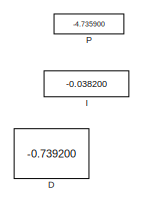
[diagram: root canvas - part 1/5, top left region]
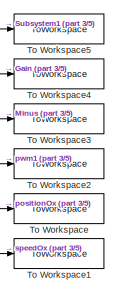
[diagram: root canvas - part 2/5, top right region]
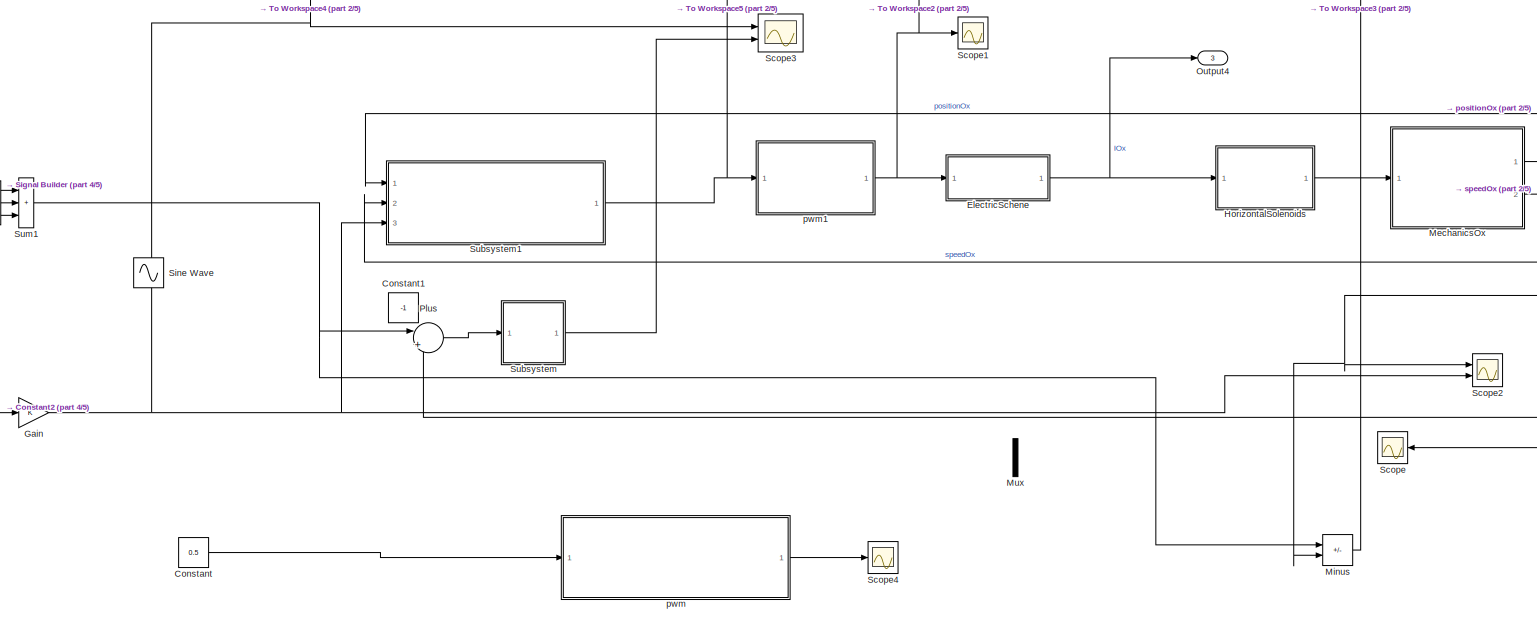
[diagram: root canvas - part 3/5, central region]
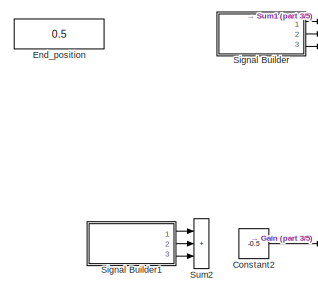
[diagram: root canvas - part 4/5, middle left region]
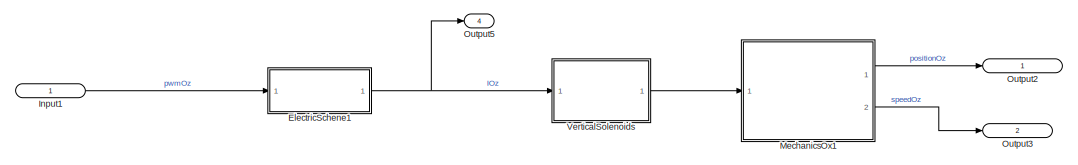
[diagram: root canvas - part 5/5, bottom right region]
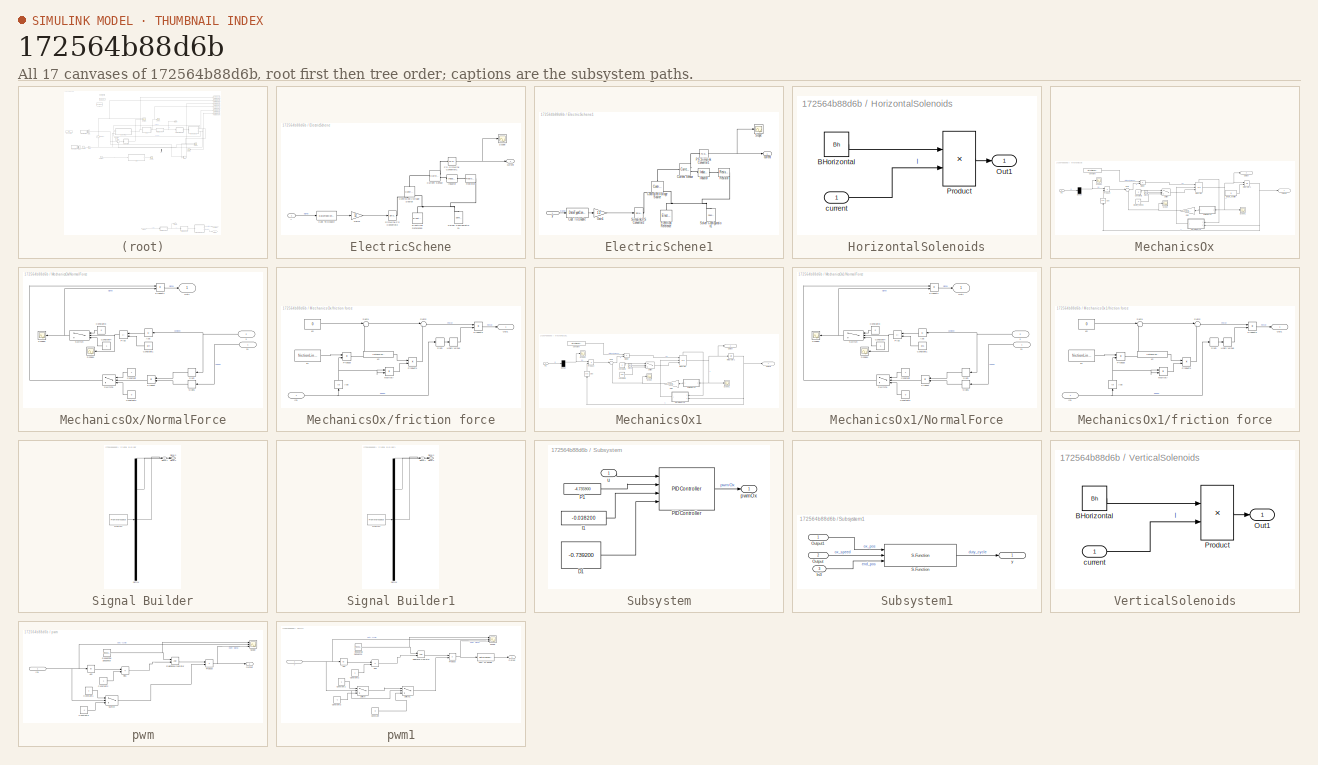
[diagram: thumbnail index - all 17 canvases of the model, root first then tree order]
MODEL slx_172564b88d6b
KIND model
CONFIG AbsTol = auto
CONFIG EnableMultiTasking = off
CONFIG FixedStep = 0.0005
CONFIG MaxStep = auto
CONFIG MinStep = auto
CONFIG RelTol = 1e-3
CONFIG SampleTimeConstraint = Unconstrained
CONFIG SolverName = ode4
CONFIG StartTime = 0.0
CONFIG StopTime = 20
BLOCK [Constant] Constant
  Commented = on
  Value = 0.5
BLOCK [Constant] Constant1
  Commented = on
  Value = -1
BLOCK [Constant] Constant2
  Value = -0.5
BLOCK [Constant] D
  Value = -0.739200
BLOCK [SubSystem] ElectricSchene
  Ports = [1, 1]
  RequestExecContextInheritance = off
BLOCK [DataTypeConversion] ElectricSchene/Cast To Double
  OutDataTypeStr = double
  RndMeth = Floor
  SaturateOnIntegerOverflow = off
BLOCK [Reference] ElectricSchene/Controlled Voltage Source  REF=fl_lib/Electrical/Electrical Sources/Controlled Voltage
Source
  NameLocation = right
  Ports = [0, 0, 0, 0, 0, 1, 2]
  SourceBlock = fl_lib/Electrical/Electrical Sources/Controlled Voltage\nSource
  SourceProductBaseCode = SS
  SourceType = Controlled Voltage\nSource
BLOCK [Reference] ElectricSchene/Current Sensor  REF=fl_lib/Electrical/Electrical Sensors/Current Sensor
  Ports = [0, 0, 0, 0, 0, 1, 2]
  SourceBlock = fl_lib/Electrical/Electrical Sensors/Current Sensor
  SourceProductBaseCode = SS
  SourceType = Current Sensor
BLOCK [Reference] ElectricSchene/Electrical Reference  REF=fl_lib/Electrical/Electrical Elements/Electrical Reference
  NameLocation = right
  Ports = [0, 0, 0, 0, 0, 1]
  SourceBlock = fl_lib/Electrical/Electrical Elements/Electrical Reference
  SourceProductBaseCode = SS
  SourceType = Electrical Reference
BLOCK [Gain] ElectricSchene/Gain1
  Gain = 12
BLOCK [Reference] ElectricSchene/Inductor  REF=fl_lib/Electrical/Electrical Elements/Inductor
  Ports = [0, 0, 0, 0, 0, 1, 1]
  SourceBlock = fl_lib/Electrical/Electrical Elements/Inductor
  SourceProductBaseCode = SS
  SourceType = Inductor
BLOCK [Reference] ElectricSchene/PS-Simulink Converter1  REF=nesl_utility/PS-Simulink
Converter
  Ports = [0, 1, 0, 0, 0, 1]
  SourceBlock = nesl_utility/PS-Simulink\nConverter
  SourceProductBaseCode = PW,SS
  SourceType = PS-Simulink\nConverter
BLOCK [Reference] ElectricSchene/Resistor  REF=fl_lib/Electrical/Electrical Elements/Resistor
  Ports = [0, 0, 0, 0, 0, 1, 1]
  SourceBlock = fl_lib/Electrical/Electrical Elements/Resistor
  SourceProductBaseCode = SS
  SourceType = Resistor
BLOCK [Scope] ElectricSchene/Scope
  Floating = off
  NumInputPorts = 1
  Ports = [1]
  ScopeSpecificationString = Simulink.scopes.TimeScopeBlockCfg('CurrentConfiguration', extmgr.ConfigurationSet(extmgr.Configuration('Core','General UI',true,'FigureColor',[0 0 0]),extmgr.Configuration('Core','Source UI',true),extmgr.Configuration('Sources','WiredSimulink',true,'DataLoggingVariableName','ScopeData2'),extmgr.Configuration('Visuals','Time Domain',true,'SerializedDisplays',{struct('MinYLimReal','-3.75','MaxYLimRe...<+1785ch>
BLOCK [Reference] ElectricSchene/Simulink-PS Converter2  REF=nesl_utility/Simulink-PS
Converter
  Ports = [1, 0, 0, 0, 0, 0, 1]
  SourceBlock = nesl_utility/Simulink-PS\nConverter
  SourceProductBaseCode = PW,SS
  SourceType = Simulink-PS\nConverter
BLOCK [Reference] ElectricSchene/Solver Configuration1  REF=nesl_utility/Solver
Configuration
  NameLocation = right
  Ports = [0, 0, 0, 0, 0, 0, 1]
  SourceBlock = nesl_utility/Solver\nConfiguration
  SourceProductBaseCode = PW,SS
  SourceType = Solver\nConfiguration
BLOCK [Outport] ElectricSchene/current
  VectorParamsAs1DForOutWhenUnconnected = off
BLOCK [Inport] ElectricSchene/y
  IconDisplay = Signal name
BLOCK [SubSystem] ElectricSchene1
  Commented = on
  Ports = [1, 1]
  RequestExecContextInheritance = off
BLOCK [DataTypeConversion] ElectricSchene1/Cast To Double
  OutDataTypeStr = double
  RndMeth = Floor
  SaturateOnIntegerOverflow = off
BLOCK [Reference] ElectricSchene1/Controlled Voltage Source  REF=fl_lib/Electrical/Electrical Sources/Controlled Voltage
Source
  NameLocation = right
  Ports = [0, 0, 0, 0, 0, 1, 2]
  SourceBlock = fl_lib/Electrical/Electrical Sources/Controlled Voltage\nSource
  SourceProductBaseCode = SS
  SourceType = Controlled Voltage\nSource
BLOCK [Reference] ElectricSchene1/Current Sensor  REF=fl_lib/Electrical/Electrical Sensors/Current Sensor
  Ports = [0, 0, 0, 0, 0, 1, 2]
  SourceBlock = fl_lib/Electrical/Electrical Sensors/Current Sensor
  SourceProductBaseCode = SS
  SourceType = Current Sensor
BLOCK [Reference] ElectricSchene1/Electrical Reference  REF=fl_lib/Electrical/Electrical Elements/Electrical Reference
  NameLocation = right
  Ports = [0, 0, 0, 0, 0, 1]
  SourceBlock = fl_lib/Electrical/Electrical Elements/Electrical Reference
  SourceProductBaseCode = SS
  SourceType = Electrical Reference
BLOCK [Gain] ElectricSchene1/Gain1
  Gain = 12
BLOCK [Reference] ElectricSchene1/Inductor  REF=fl_lib/Electrical/Electrical Elements/Inductor
  Ports = [0, 0, 0, 0, 0, 1, 1]
  SourceBlock = fl_lib/Electrical/Electrical Elements/Inductor
  SourceProductBaseCode = SS
  SourceType = Inductor
BLOCK [Reference] ElectricSchene1/PS-Simulink Converter1  REF=nesl_utility/PS-Simulink
Converter
  Ports = [0, 1, 0, 0, 0, 1]
  SourceBlock = nesl_utility/PS-Simulink\nConverter
  SourceProductBaseCode = PW,SS
  SourceType = PS-Simulink\nConverter
BLOCK [Reference] ElectricSchene1/Resistor  REF=fl_lib/Electrical/Electrical Elements/Resistor
  Ports = [0, 0, 0, 0, 0, 1, 1]
  SourceBlock = fl_lib/Electrical/Electrical Elements/Resistor
  SourceProductBaseCode = SS
  SourceType = Resistor
BLOCK [Scope] ElectricSchene1/Scope
  Floating = off
  NumInputPorts = 1
  Ports = [1]
  ScopeSpecificationString = Simulink.scopes.TimeScopeBlockCfg('CurrentConfiguration', extmgr.ConfigurationSet(extmgr.Configuration('Core','General UI',true,'FigureColor',[0 0 0]),extmgr.Configuration('Core','Source UI',true),extmgr.Configuration('Sources','WiredSimulink',true,'DataLoggingVariableName','ScopeData2'),extmgr.Configuration('Visuals','Time Domain',true,'SerializedDisplays',{struct('MinYLimReal','-3.7502','MaxYLim...<+1786ch>
BLOCK [Reference] ElectricSchene1/Simulink-PS Converter2  REF=nesl_utility/Simulink-PS
Converter
  Ports = [1, 0, 0, 0, 0, 0, 1]
  SourceBlock = nesl_utility/Simulink-PS\nConverter
  SourceProductBaseCode = PW,SS
  SourceType = Simulink-PS\nConverter
BLOCK [Reference] ElectricSchene1/Solver Configuration1  REF=nesl_utility/Solver
Configuration
  NameLocation = right
  Ports = [0, 0, 0, 0, 0, 0, 1]
  SourceBlock = nesl_utility/Solver\nConfiguration
  SourceProductBaseCode = PW,SS
  SourceType = Solver\nConfiguration
BLOCK [Outport] ElectricSchene1/current
  VectorParamsAs1DForOutWhenUnconnected = off
BLOCK [Inport] ElectricSchene1/y
  IconDisplay = Signal name
BLOCK [Constant] End_position
  Value = 0.5
BLOCK [Gain] Gain
BLOCK [SubSystem] HorizontalSolenoids
  Ports = [1, 1]
  RequestExecContextInheritance = off
BLOCK [Constant] HorizontalSolenoids/BHorizontal
  Value = Bh
BLOCK [Outport] HorizontalSolenoids/Out1
BLOCK [Product] HorizontalSolenoids/Product
  Ports = [2, 1]
BLOCK [Inport] HorizontalSolenoids/current
  IconDisplay = Signal name
BLOCK [Constant] I
  Value = -0.038200
BLOCK [Inport] Input1
  IconDisplay = Port number and signal name
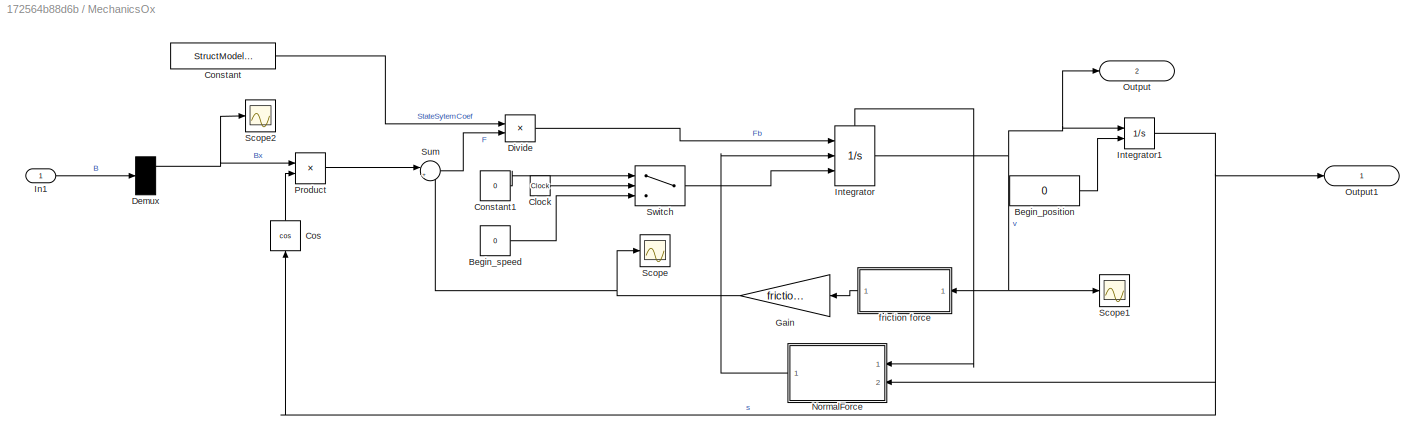
BLOCK [SubSystem] MechanicsOx
  Ports = [1, 2]
  RequestExecContextInheritance = off
BLOCK [Constant] MechanicsOx/Begin_position
  Value = 0
BLOCK [Constant] MechanicsOx/Begin_speed
  Value = 0
BLOCK [Clock] MechanicsOx/Clock
BLOCK [Constant] MechanicsOx/Constant
  Value = StructModelConst
BLOCK [Constant] MechanicsOx/Constant1
  Value = 0
BLOCK [Trigonometry] MechanicsOx/Cos
  NameLocation = right
  Operator = cos
  Ports = [1, 1]
BLOCK [Demux] MechanicsOx/Demux
  Outputs = 3
  Ports = [1, 3]
BLOCK [Product] MechanicsOx/Divide
  Inputs = **
  Ports = [2, 1]
BLOCK [Gain] MechanicsOx/Gain
  Gain = frictionCoef
  NameLocation = top
BLOCK [Inport] MechanicsOx/In1
  IconDisplay = Signal name
BLOCK [Integrator] MechanicsOx/Integrator
  ExternalReset = level
  InitialConditionSource = external
  Ports = [3, 1, 0, 0, 1]
  ShowStatePort = on
BLOCK [Integrator] MechanicsOx/Integrator1
  InitialCondition = degX0
  InitialConditionSource = external
  Ports = [2, 1]
BLOCK [SubSystem] MechanicsOx/NormalForce
  NameLocation = top
  Ports = [2, 1]
  RequestExecContextInheritance = off
BLOCK [Abs] MechanicsOx/NormalForce/Abs
  NameLocation = top
  SaturateOnIntegerOverflow = off
BLOCK [Constant] MechanicsOx/NormalForce/Constant
  NameLocation = top
BLOCK [Constant] MechanicsOx/NormalForce/Constant1
  NameLocation = top
  Value = pi/4
BLOCK [Constant] MechanicsOx/NormalForce/Constant2
  NameLocation = top
  Value = 0
BLOCK [Constant] MechanicsOx/NormalForce/Constant3
  NameLocation = top
  Value = 0
BLOCK [Constant] MechanicsOx/NormalForce/Constant4
  NameLocation = top
BLOCK [Outport] MechanicsOx/NormalForce/Out1
  IconDisplay = Signal name
BLOCK [Sum] MechanicsOx/NormalForce/Plus
  IconShape = rectangular
  Inputs = -+
  NameLocation = top
  Ports = [2, 1]
BLOCK [Product] MechanicsOx/NormalForce/Product
  NameLocation = top
  Ports = [2, 1]
BLOCK [Product] MechanicsOx/NormalForce/Product1
  Ports = [2, 1]
BLOCK [Scope] MechanicsOx/NormalForce/Scope3
  Floating = off
  NameLocation = top
  NumInputPorts = 1
  Ports = [1]
  ScopeSpecificationString = Simulink.scopes.TimeScopeBlockCfg('CurrentConfiguration', extmgr.ConfigurationSet(extmgr.Configuration('Core','General UI',true),extmgr.Configuration('Core','Source UI',true),extmgr.Configuration('Sources','WiredSimulink',true,'DataLoggingVariableName','ScopeData1'),extmgr.Configuration('Visuals','Time Domain',true,'SerializedDisplays',{struct('MinYLimReal','-1.00000','MaxYLimReal','1.00000','YLab...<+1726ch>
BLOCK [Scope] MechanicsOx/NormalForce/Scope4
  Floating = off
  NameLocation = top
  NumInputPorts = 1
  Ports = [1]
  ScopeSpecificationString = Simulink.scopes.TimeScopeBlockCfg('CurrentConfiguration', extmgr.ConfigurationSet(extmgr.Configuration('Core','General UI',true),extmgr.Configuration('Core','Source UI',true),extmgr.Configuration('Sources','WiredSimulink',true,'DataLoggingVariableName','ScopeData2'),extmgr.Configuration('Visuals','Time Domain',true,'SerializedDisplays',{struct('MinYLimReal','0.20867','MaxYLimReal','0.84948','YLabe...<+1726ch>
BLOCK [Signum] MechanicsOx/NormalForce/Sign
  NameLocation = top
BLOCK [Signum] MechanicsOx/NormalForce/Sign1
  NameLocation = top
BLOCK [Switch] MechanicsOx/NormalForce/Switch
  Criteria = u2 > Threshold
  InputSameDT = off
  NameLocation = top
  SaturateOnIntegerOverflow = off
  Threshold = 0.001
BLOCK [Switch] MechanicsOx/NormalForce/Switch1
  InputSameDT = off
  NameLocation = top
  SaturateOnIntegerOverflow = off
  Threshold = 1
BLOCK [Inport] MechanicsOx/NormalForce/s
  IconDisplay = Signal name
  Port = 2
BLOCK [Inport] MechanicsOx/NormalForce/s1
  IconDisplay = Signal name
BLOCK [Outport] MechanicsOx/Output
  IconDisplay = Signal name
  Port = 2
BLOCK [Outport] MechanicsOx/Output1
  IconDisplay = Signal name
BLOCK [Product] MechanicsOx/Product
  Ports = [2, 1]
BLOCK [Scope] MechanicsOx/Scope
  Floating = off
  NumInputPorts = 1
  Ports = [1]
  ScopeSpecificationString = Simulink.scopes.TimeScopeBlockCfg('CurrentConfiguration', extmgr.ConfigurationSet(extmgr.Configuration('Core','General UI',true),extmgr.Configuration('Core','Source UI',true),extmgr.Configuration('Sources','WiredSimulink',true,'DataLoggingVariableName','ScopeData4'),extmgr.Configuration('Visuals','Time Domain',true,'SerializedDisplays',{struct('MinYLimReal','-0.000037','MaxYLimReal','0.000036','YL...<+1400ch>
BLOCK [Scope] MechanicsOx/Scope1
  Commented = on
  Floating = off
  NumInputPorts = 1
  Ports = [1]
  ScopeSpecificationString = Simulink.scopes.TimeScopeBlockCfg('CurrentConfiguration', extmgr.ConfigurationSet(extmgr.Configuration('Core','General UI',true),extmgr.Configuration('Core','Source UI',true),extmgr.Configuration('Sources','WiredSimulink',true,'DataLoggingVariableName','ScopeData2'),extmgr.Configuration('Visuals','Time Domain',true,'SerializedDisplays',{struct('MinYLimReal','-0.54781','MaxYLimReal','1.80112','YLab...<+1388ch>
BLOCK [Scope] MechanicsOx/Scope2
  Floating = off
  NumInputPorts = 1
  Ports = [1]
  ScopeSpecificationString = Simulink.scopes.TimeScopeBlockCfg('CurrentConfiguration', extmgr.ConfigurationSet(extmgr.Configuration('Core','General UI',true),extmgr.Configuration('Core','Source UI',true),extmgr.Configuration('Sources','WiredSimulink',true,'DataLoggingVariableName','ScopeData5'),extmgr.Configuration('Visuals','Time Domain',true,'SerializedDisplays',{struct('MinYLimReal','-0.00237','MaxYLimReal','0.00237','YLab...<+1414ch>
BLOCK [Sum] MechanicsOx/Sum
  Inputs = |++
  Ports = [2, 1]
BLOCK [Switch] MechanicsOx/Switch
  Criteria = u2 > Threshold
  InputSameDT = off
  SaturateOnIntegerOverflow = off
BLOCK [SubSystem] MechanicsOx/friction force
  NameLocation = top
  Ports = [1, 1]
  RequestExecContextInheritance = off
BLOCK [Abs] MechanicsOx/friction force/Abs
  NameLocation = right
  SaturateOnIntegerOverflow = off
BLOCK [Inport] MechanicsOx/friction force/In1
  IconDisplay = Signal name
BLOCK [Product] MechanicsOx/friction force/Multiply
  Ports = [2, 1]
BLOCK [Outport] MechanicsOx/friction force/Out1
  IconDisplay = Signal name
BLOCK [Product] MechanicsOx/friction force/Product
  Ports = [2, 1]
BLOCK [Product] MechanicsOx/friction force/Product1
  Ports = [2, 1]
BLOCK [Product] MechanicsOx/friction force/Product2
  Ports = [2, 1]
BLOCK [Signum] MechanicsOx/friction force/Sign
BLOCK [Sum] MechanicsOx/friction force/Sum1
  Inputs = |++
  Ports = [2, 1]
BLOCK [Sum] MechanicsOx/friction force/Sum2
  Inputs = |++
  Ports = [2, 1]
BLOCK [UnaryMinus] MechanicsOx/friction force/Unary Minus
BLOCK [Constant] MechanicsOx/friction force/k0
  Value = 0
BLOCK [Constant] MechanicsOx/friction force/k1
  Value = frictionLinearCoef
BLOCK [Constant] MechanicsOx/friction force/k2
  Value = frictionQuadraticCoef
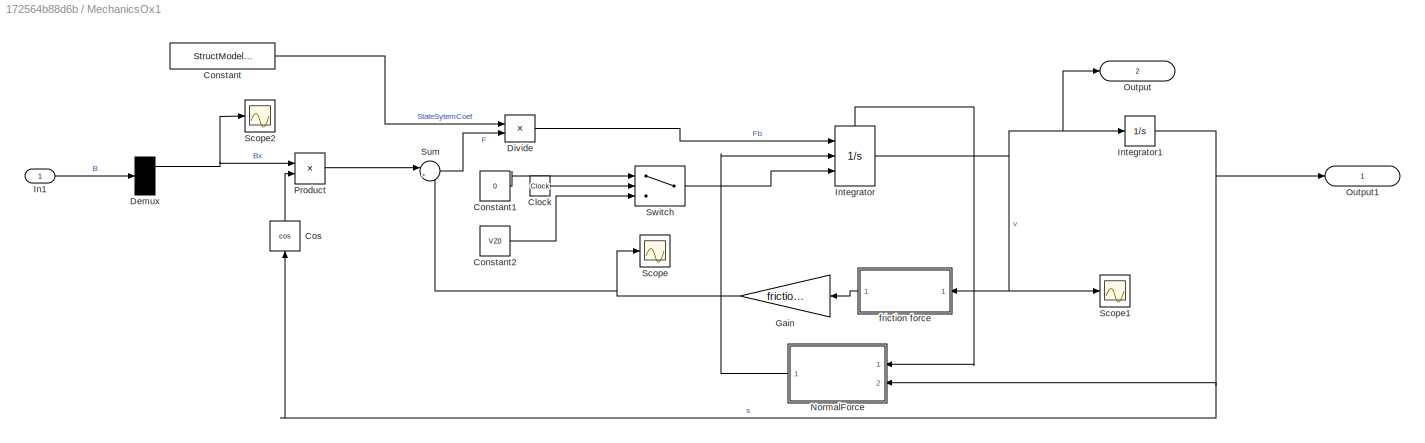
BLOCK [SubSystem] MechanicsOx1
  Commented = on
  Ports = [1, 2]
  RequestExecContextInheritance = off
BLOCK [Clock] MechanicsOx1/Clock
BLOCK [Constant] MechanicsOx1/Constant
  Value = StructModelConst
BLOCK [Constant] MechanicsOx1/Constant1
  Value = 0
BLOCK [Constant] MechanicsOx1/Constant2
  Value = VZ0
BLOCK [Trigonometry] MechanicsOx1/Cos
  NameLocation = right
  Operator = cos
  Ports = [1, 1]
BLOCK [Demux] MechanicsOx1/Demux
  Outputs = 3
  Ports = [1, 3]
BLOCK [Product] MechanicsOx1/Divide
  Inputs = **
  Ports = [2, 1]
BLOCK [Gain] MechanicsOx1/Gain
  Gain = frictionCoef
  NameLocation = top
BLOCK [Inport] MechanicsOx1/In1
  IconDisplay = Signal name
BLOCK [Integrator] MechanicsOx1/Integrator
  ExternalReset = level
  InitialConditionSource = external
  Ports = [3, 1, 0, 0, 1]
  ShowStatePort = on
BLOCK [Integrator] MechanicsOx1/Integrator1
  InitialCondition = degZ0
  Ports = [1, 1]
BLOCK [SubSystem] MechanicsOx1/NormalForce
  NameLocation = top
  Ports = [2, 1]
  RequestExecContextInheritance = off
BLOCK [Abs] MechanicsOx1/NormalForce/Abs
  NameLocation = top
  SaturateOnIntegerOverflow = off
BLOCK [Constant] MechanicsOx1/NormalForce/Constant
  NameLocation = top
BLOCK [Constant] MechanicsOx1/NormalForce/Constant1
  NameLocation = top
  Value = pi/6
BLOCK [Constant] MechanicsOx1/NormalForce/Constant2
  NameLocation = top
  Value = 0
BLOCK [Constant] MechanicsOx1/NormalForce/Constant3
  NameLocation = top
  Value = 0
BLOCK [Constant] MechanicsOx1/NormalForce/Constant4
  NameLocation = top
BLOCK [Outport] MechanicsOx1/NormalForce/Out1
  IconDisplay = Signal name
BLOCK [Sum] MechanicsOx1/NormalForce/Plus
  IconShape = rectangular
  Inputs = -+
  NameLocation = top
  Ports = [2, 1]
BLOCK [Product] MechanicsOx1/NormalForce/Product
  NameLocation = top
  Ports = [2, 1]
BLOCK [Product] MechanicsOx1/NormalForce/Product1
  Ports = [2, 1]
BLOCK [Scope] MechanicsOx1/NormalForce/Scope3
  Floating = off
  NameLocation = top
  NumInputPorts = 1
  Ports = [1]
  ScopeSpecificationString = Simulink.scopes.TimeScopeBlockCfg('CurrentConfiguration', extmgr.ConfigurationSet(extmgr.Configuration('Core','General UI',true),extmgr.Configuration('Core','Source UI',true),extmgr.Configuration('Sources','WiredSimulink',true,'DataLoggingVariableName','ScopeData1'),extmgr.Configuration('Visuals','Time Domain',true,'SerializedDisplays',{struct('MinYLimReal','-1.00000','MaxYLimReal','1.00000','YLab...<+1726ch>
BLOCK [Scope] MechanicsOx1/NormalForce/Scope4
  Floating = off
  NameLocation = top
  NumInputPorts = 1
  Ports = [1]
  ScopeSpecificationString = Simulink.scopes.TimeScopeBlockCfg('CurrentConfiguration', extmgr.ConfigurationSet(extmgr.Configuration('Core','General UI',true),extmgr.Configuration('Core','Source UI',true),extmgr.Configuration('Sources','WiredSimulink',true,'DataLoggingVariableName','ScopeData2'),extmgr.Configuration('Visuals','Time Domain',true,'SerializedDisplays',{struct('MinYLimReal','0.50026','MaxYLimReal','0.52619','YLabe...<+1754ch>
BLOCK [Signum] MechanicsOx1/NormalForce/Sign
  NameLocation = top
BLOCK [Signum] MechanicsOx1/NormalForce/Sign1
  NameLocation = top
BLOCK [Switch] MechanicsOx1/NormalForce/Switch
  Criteria = u2 > Threshold
  InputSameDT = off
  NameLocation = top
  SaturateOnIntegerOverflow = off
  Threshold = 0.001
BLOCK [Switch] MechanicsOx1/NormalForce/Switch1
  InputSameDT = off
  NameLocation = top
  SaturateOnIntegerOverflow = off
  Threshold = 1
BLOCK [Inport] MechanicsOx1/NormalForce/s
  IconDisplay = Signal name
  Port = 2
BLOCK [Inport] MechanicsOx1/NormalForce/s1
  IconDisplay = Signal name
BLOCK [Outport] MechanicsOx1/Output
  IconDisplay = Signal name
  Port = 2
BLOCK [Outport] MechanicsOx1/Output1
  IconDisplay = Signal name
BLOCK [Product] MechanicsOx1/Product
  Ports = [2, 1]
BLOCK [Scope] MechanicsOx1/Scope
  Floating = off
  NumInputPorts = 1
  Ports = [1]
  ScopeSpecificationString = Simulink.scopes.TimeScopeBlockCfg('CurrentConfiguration', extmgr.ConfigurationSet(extmgr.Configuration('Core','General UI',true),extmgr.Configuration('Core','Source UI',true),extmgr.Configuration('Sources','WiredSimulink',true,'DataLoggingVariableName','ScopeData4'),extmgr.Configuration('Visuals','Time Domain',true,'SerializedDisplays',{struct('MinYLimReal','-0.00000001','MaxYLimReal','0.00000009'...<+1416ch>
BLOCK [Scope] MechanicsOx1/Scope1
  Floating = off
  NumInputPorts = 1
  Ports = [1]
  ScopeSpecificationString = Simulink.scopes.TimeScopeBlockCfg('CurrentConfiguration', extmgr.ConfigurationSet(extmgr.Configuration('Core','General UI',true),extmgr.Configuration('Core','Source UI',true),extmgr.Configuration('Sources','WiredSimulink',true,'DataLoggingVariableName','ScopeData2'),extmgr.Configuration('Visuals','Time Domain',true,'SerializedDisplays',{struct('MinYLimReal','-0.90976','MaxYLimReal','8.18781','YLab...<+1388ch>
BLOCK [Scope] MechanicsOx1/Scope2
  Floating = off
  NumInputPorts = 1
  Ports = [1]
  ScopeSpecificationString = Simulink.scopes.TimeScopeBlockCfg('CurrentConfiguration', extmgr.ConfigurationSet(extmgr.Configuration('Core','General UI',true),extmgr.Configuration('Core','Source UI',true),extmgr.Configuration('Sources','WiredSimulink',true,'DataLoggingVariableName','ScopeData5'),extmgr.Configuration('Visuals','Time Domain',true,'SerializedDisplays',{struct('MinYLimReal','-0.00234','MaxYLimReal','0.00233','YLab...<+1390ch>
BLOCK [Sum] MechanicsOx1/Sum
  Inputs = |++
  Ports = [2, 1]
BLOCK [Switch] MechanicsOx1/Switch
  Criteria = u2 > Threshold
  InputSameDT = off
  SaturateOnIntegerOverflow = off
BLOCK [SubSystem] MechanicsOx1/friction force
  NameLocation = top
  Ports = [1, 1]
  RequestExecContextInheritance = off
BLOCK [Abs] MechanicsOx1/friction force/Abs
  NameLocation = right
  SaturateOnIntegerOverflow = off
BLOCK [Inport] MechanicsOx1/friction force/In1
  IconDisplay = Signal name
BLOCK [Product] MechanicsOx1/friction force/Multiply
  Ports = [2, 1]
BLOCK [Outport] MechanicsOx1/friction force/Out1
  IconDisplay = Signal name
BLOCK [Product] MechanicsOx1/friction force/Product
  Ports = [2, 1]
BLOCK [Product] MechanicsOx1/friction force/Product1
  Ports = [2, 1]
BLOCK [Product] MechanicsOx1/friction force/Product2
  Ports = [2, 1]
BLOCK [Signum] MechanicsOx1/friction force/Sign
BLOCK [Sum] MechanicsOx1/friction force/Sum1
  Inputs = |++
  Ports = [2, 1]
BLOCK [Sum] MechanicsOx1/friction force/Sum2
  Inputs = |++
  Ports = [2, 1]
BLOCK [UnaryMinus] MechanicsOx1/friction force/Unary Minus
BLOCK [Constant] MechanicsOx1/friction force/k0
  Value = 0
BLOCK [Constant] MechanicsOx1/friction force/k1
  Value = frictionLinearCoef
BLOCK [Constant] MechanicsOx1/friction force/k2
  Value = frictionQuadraticCoef
BLOCK [Sum] Minus
  IconShape = rectangular
  Inputs = +-
  Ports = [2, 1]
BLOCK [Mux] Mux
  DisplayOption = bar
  Inputs = 2
  Ports = [2, 1]
BLOCK [Outport] Output2
  IconDisplay = Port number and signal name
  SignalName = positionOz
BLOCK [Outport] Output3
  IconDisplay = Port number and signal name
  Port = 2
  SignalName = speedOz
BLOCK [Outport] Output4
  IconDisplay = Port number and signal name
  Port = 3
  SignalName = IOx
BLOCK [Outport] Output5
  IconDisplay = Port number and signal name
  Port = 4
  SignalName = IOz
BLOCK [Constant] P
  Value = -4.735900
BLOCK [Sum] Plus
  Commented = on
  Inputs = |+-
  Ports = [2, 1]
BLOCK [Scope] Scope
  Floating = off
  NameLocation = top
  NumInputPorts = 1
  Ports = [1]
  ScopeSpecificationString = Simulink.scopes.TimeScopeBlockCfg('CurrentConfiguration', extmgr.ConfigurationSet(extmgr.Configuration('Core','General UI',true),extmgr.Configuration('Core','Source UI',true),extmgr.Configuration('Sources','WiredSimulink',true,'DataLoggingVariableName','ScopeData1'),extmgr.Configuration('Visuals','Time Domain',true,'SerializedDisplays',{struct('MinYLimReal','-3.16153','MaxYLimReal','4.97356','YLab...<+1396ch>
BLOCK [Scope] Scope1
  Floating = off
  NumInputPorts = 1
  Ports = [1]
  ScopeSpecificationString = Simulink.scopes.TimeScopeBlockCfg('CurrentConfiguration', extmgr.ConfigurationSet(extmgr.Configuration('Core','General UI',true),extmgr.Configuration('Core','Source UI',true),extmgr.Configuration('Sources','WiredSimulink',true,'DataLoggingVariableName','ScopeData1'),extmgr.Configuration('Visuals','Time Domain',true,'SerializedDisplays',{struct('MinYLimReal','-1.25','MaxYLimReal','1.25','YLabelReal...<+1480ch>
BLOCK [Scope] Scope2
  Floating = off
  NumInputPorts = 2
  Ports = [2]
  ScopeSpecificationString = Simulink.scopes.TimeScopeBlockCfg('CurrentConfiguration', extmgr.ConfigurationSet(extmgr.Configuration('Core','General UI',true),extmgr.Configuration('Core','Source UI',true),extmgr.Configuration('Sources','WiredSimulink',true,'DataLoggingVariableName','ScopeData2'),extmgr.Configuration('Visuals','Time Domain',true,'SerializedDisplays',{struct('MinYLimReal','-0.98055','MaxYLimReal','0.98054','YLab...<+1806ch>
BLOCK [Scope] Scope3
  Floating = off
  NumInputPorts = 2
  Ports = [2]
  ScopeSpecificationString = Simulink.scopes.TimeScopeBlockCfg('CurrentConfiguration', extmgr.ConfigurationSet(extmgr.Configuration('Core','General UI',true),extmgr.Configuration('Core','Source UI',true),extmgr.Configuration('Sources','WiredSimulink',true,'DataLoggingVariableName','ScopeData3'),extmgr.Configuration('Visuals','Time Domain',true,'SerializedDisplays',{struct('MinYLimReal','-1.25','MaxYLimReal','1.25','YLabelReal...<+1525ch>
BLOCK [Scope] Scope4
  Commented = on
  Floating = off
  NumInputPorts = 1
  Ports = [1]
  ScopeSpecificationString = Simulink.scopes.TimeScopeBlockCfg('CurrentConfiguration', extmgr.ConfigurationSet(extmgr.Configuration('Core','General UI',true),extmgr.Configuration('Core','Source UI',true),extmgr.Configuration('Sources','WiredSimulink',true,'DataLoggingVariableName','ScopeData1'),extmgr.Configuration('Visuals','Time Domain',true,'SerializedDisplays',{struct('MinYLimReal','-0.125','MaxYLimReal','1.125','YLabelRe...<+1378ch>
BLOCK [SubSystem] Signal Builder
  ClipboardFcn = sigbuilder_block('clipboard');
  CloseFcn = sigbuilder_block('close');
  Commented = on
  ContinueFcn = sigbuilder_block('continue');
  CopyFcn = sigbuilder_block('copy');
  DeleteFcn = sigbuilder_block('delete');
  LoadFcn = sigbuilder_block('load');
  MaskHideContents = on
  ModelCloseFcn = sigbuilder_block('modelClose');
  NameChangeFcn = sigbuilder_block('namechange');
  NameLocation = left
  OpenFcn = sigbuilder_block('open',[429.75 192 565.5 399.75 ]);
  PauseFcn = sigbuilder_block('pause');
  Ports = [0, 3]
  PreSaveFcn = sigbuilder_block('preSave');
  RequestExecContextInheritance = off
  StartFcn = sigbuilder_block('start');
  StopFcn = sigbuilder_block('stop');
  Tag = STV Subsys
BLOCK [Demux] Signal Builder/Demux
  DisplayOption = none
  Outputs = 3
  Ports = [1, 3]
  Tag = STV Demux
BLOCK [FromWorkspace] Signal Builder/FromWs
  Tag = STV FromWs
  VariableName = tuvar
BLOCK [Outport] Signal Builder/Signal 1
  Tag = STV Outport
BLOCK [Outport] Signal Builder/Signal 2
  Port = 2
  Tag = STV Outport
BLOCK [Outport] Signal Builder/Signal 3
  Port = 3
  Tag = STV Outport
BLOCK [SubSystem] Signal Builder1
  ClipboardFcn = sigbuilder_block('clipboard');
  CloseFcn = sigbuilder_block('close');
  ContinueFcn = sigbuilder_block('continue');
  CopyFcn = sigbuilder_block('copy');
  DeleteFcn = sigbuilder_block('delete');
  LoadFcn = sigbuilder_block('load');
  MaskHideContents = on
  ModelCloseFcn = sigbuilder_block('modelClose');
  NameChangeFcn = sigbuilder_block('namechange');
  NameLocation = left
  OpenFcn = sigbuilder_block('open',[50.25 0 1389.75 817.5 ]);
  PauseFcn = sigbuilder_block('pause');
  Ports = [0, 3]
  PreSaveFcn = sigbuilder_block('preSave');
  RequestExecContextInheritance = off
  StartFcn = sigbuilder_block('start');
  StopFcn = sigbuilder_block('stop');
  Tag = STV Subsys
BLOCK [Demux] Signal Builder1/Demux
  DisplayOption = none
  Outputs = 3
  Ports = [1, 3]
  Tag = STV Demux
BLOCK [FromWorkspace] Signal Builder1/FromWs
  Tag = STV FromWs
  VariableName = tuvar
BLOCK [Outport] Signal Builder1/Signal 1
  Tag = STV Outport
BLOCK [Outport] Signal Builder1/Signal 2
  Port = 2
  Tag = STV Outport
BLOCK [Outport] Signal Builder1/Signal 3
  Port = 3
  Tag = STV Outport
BLOCK [Sin] Sine Wave
  Frequency = 10
  Phase = pi/2
  Ports = [0, 1]
  SampleTime = 0
BLOCK [SubSystem] Subsystem
  Commented = on
  Ports = [1, 1]
  RequestExecContextInheritance = off
BLOCK [Constant] Subsystem/D1
  Value = -0.739200
BLOCK [Constant] Subsystem/I1
  Value = -0.038200
BLOCK [Constant] Subsystem/P1
  Value = -4.735900
BLOCK [Reference] Subsystem/PID Controller  REF=pid_lib/PID Controller
  Ports = [4, 1]
  SourceBlock = pid_lib/PID Controller
  SourceProductBaseCode = SL
  SourceType = PID 1dof
BLOCK [Outport] Subsystem/pwmOx
BLOCK [Inport] Subsystem/u
BLOCK [SubSystem] Subsystem1
  Ports = [3, 1]
  RequestExecContextInheritance = off
BLOCK [Inport] Subsystem1/In3
  IconDisplay = Signal name
  Port = 3
BLOCK [Inport] Subsystem1/Output
  IconDisplay = Signal name
  Port = 2
BLOCK [Inport] Subsystem1/Output1
  IconDisplay = Signal name
BLOCK [S-Function] Subsystem1/S-Function
  EnableBusSupport = off
  FunctionName = neurla_http_client_sfunc
  Parameters = 3
  Ports = [3, 1]
  SFcnIsStateOwnerBlock = off
  SFunctionDeploymentMode = off
BLOCK [Outport] Subsystem1/y
  IconDisplay = Signal name
BLOCK [Sum] Sum1
  Commented = on
  IconShape = rectangular
  Inputs = +++
  Ports = [3, 1]
BLOCK [Sum] Sum2
  IconShape = rectangular
  Inputs = +++
  Ports = [3, 1]
BLOCK [ToWorkspace] To Workspace
  FixptAsFi = on
  MaxDataPoints = inf
  Ports = [1]
  SampleTime = 1/100
  Save2DSignal = 2-D array (concatenate along first dimension)
  VariableName = OxPositions
BLOCK [ToWorkspace] To Workspace1
  FixptAsFi = on
  MaxDataPoints = inf
  Ports = [1]
  SampleTime = 1/100
  VariableName = OxSpeed
BLOCK [ToWorkspace] To Workspace2
  FixptAsFi = on
  MaxDataPoints = inf
  Ports = [1]
  SampleTime = 1/100
  Save2DSignal = 2-D array (concatenate along first dimension)
  VariableName = pwmControl
BLOCK [ToWorkspace] To Workspace3
  FixptAsFi = on
  MaxDataPoints = inf
  Ports = [1]
  SampleTime = 1/100
  Save2DSignal = 2-D array (concatenate along first dimension)
  VariableName = errorControl
BLOCK [ToWorkspace] To Workspace4
  FixptAsFi = on
  MaxDataPoints = inf
  Ports = [1]
  SampleTime = 1/100
  Save2DSignal = 2-D array (concatenate along first dimension)
  VariableName = task
BLOCK [ToWorkspace] To Workspace5
  FixptAsFi = on
  MaxDataPoints = inf
  Ports = [1]
  SampleTime = 1/100
  Save2DSignal = 2-D array (concatenate along first dimension)
  VariableName = dutyCycle
BLOCK [SubSystem] VerticalSolenoids
  Commented = on
  Ports = [1, 1]
  RequestExecContextInheritance = off
BLOCK [Constant] VerticalSolenoids/BHorizontal
  Value = Bh
BLOCK [Outport] VerticalSolenoids/Out1
BLOCK [Product] VerticalSolenoids/Product
  Ports = [2, 1]
BLOCK [Inport] VerticalSolenoids/current
  IconDisplay = Signal name
BLOCK [SubSystem] pwm
  AncestorBlock = custom_pwm/pwm
  Commented = on
  Ports = [1, 1]
  RequestExecContextInheritance = off
BLOCK [Abs] pwm/Abs
  SaturateOnIntegerOverflow = off
BLOCK [Constant] pwm/Constant1
BLOCK [Constant] pwm/Constant2
BLOCK [Constant] pwm/Constant3
  Value = -1
BLOCK [Inport] pwm/In1
  IconDisplay = Signal name
BLOCK [Outport] pwm/Output
  IconDisplay = Signal name
BLOCK [Sum] pwm/Plus
  IconShape = rectangular
  Inputs = -+
  Ports = [2, 1]
BLOCK [Product] pwm/Product
  Ports = [2, 1]
BLOCK [RelationalOperator] pwm/Relational Operator
  InputSameDT = off
  OutDataTypeStr = boolean
  Ports = [2, 1]
  RndMeth = Simplest
BLOCK [Reference] pwm/Repeating Sequence  REF=simulink/Sources/Repeating
Sequence
  Ports = [0, 1]
  SourceBlock = simulink/Sources/Repeating\nSequence
  SourceProductBaseCode = SL
  SourceType = Repeating table
BLOCK [Scope] pwm/Scope
  Floating = off
  NumInputPorts = 3
  Ports = [3]
  ScopeSpecificationString = Simulink.scopes.TimeScopeBlockCfg('CurrentConfiguration', extmgr.ConfigurationSet(extmgr.Configuration('Core','General UI',true),extmgr.Configuration('Core','Source UI',true),extmgr.Configuration('Sources','WiredSimulink',true,'DataLoggingVariableName','ScopeData1'),extmgr.Configuration('Visuals','Time Domain',true,'SerializedDisplays',{struct('MinYLimReal','-1.375','MaxYLimReal','2.375','YLabelRe...<+1438ch>
BLOCK [Switch] pwm/Switch
  InputSameDT = off
  SaturateOnIntegerOverflow = off
BLOCK [SubSystem] pwm1
  AncestorBlock = custom_pwm/pwm
  Ports = [1, 1]
  RequestExecContextInheritance = off
BLOCK [Abs] pwm1/Abs
  SaturateOnIntegerOverflow = off
BLOCK [DataTypeConversion] pwm1/Cast To Double
  OutDataTypeStr = double
  RndMeth = Floor
  SaturateOnIntegerOverflow = off
BLOCK [Constant] pwm1/Constant
  Value = 0
BLOCK [Constant] pwm1/Constant1
BLOCK [Constant] pwm1/Constant2
BLOCK [Constant] pwm1/Constant3
  Value = -1
BLOCK [Outport] pwm1/Output
  IconDisplay = Signal name
BLOCK [Sum] pwm1/Plus
  IconShape = rectangular
  Inputs = -+
  Ports = [2, 1]
BLOCK [Product] pwm1/Product
  Ports = [2, 1]
BLOCK [RelationalOperator] pwm1/Relational Operator
  InputSameDT = off
  OutDataTypeStr = boolean
  Ports = [2, 1]
  RndMeth = Simplest
BLOCK [Reference] pwm1/Repeating Sequence  REF=simulink/Sources/Repeating
Sequence
  Ports = [0, 1]
  SourceBlock = simulink/Sources/Repeating\nSequence
  SourceProductBaseCode = SL
  SourceType = Repeating table
BLOCK [Scope] pwm1/Scope
  Floating = off
  NumInputPorts = 3
  Ports = [3]
  ScopeSpecificationString = Simulink.scopes.TimeScopeBlockCfg('CurrentConfiguration', extmgr.ConfigurationSet(extmgr.Configuration('Core','General UI',true),extmgr.Configuration('Core','Source UI',true),extmgr.Configuration('Sources','WiredSimulink',true,'DataLoggingVariableName','ScopeData1'),extmgr.Configuration('Visuals','Time Domain',true,'SerializedDisplays',{struct('MinYLimReal','-0.9409','MaxYLimReal','1.5591','YLabel...<+1831ch>
BLOCK [Switch] pwm1/Switch
  InputSameDT = off
  SaturateOnIntegerOverflow = off
BLOCK [Switch] pwm1/Switch1
  Criteria = u2 ~= 0
  InputSameDT = off
  SaturateOnIntegerOverflow = off
BLOCK [Inport] pwm1/y
  IconDisplay = Signal name
LINE Constant2:1 -> Gain:1
LINE Constant:1 -> pwm:1
LINE ElectricSchene/Cast To Double:1 -> ElectricSchene/Gain1:1
LINE ElectricSchene/Gain1:1 -> ElectricSchene/Simulink-PS Converter2:1
NET ElectricSchene/PS-Simulink Converter1:1 -> ElectricSchene/Scope:1, ElectricSchene/current:1
LINE ElectricSchene/y:1 -> ElectricSchene/Cast To Double:1
LINE ElectricSchene1/Cast To Double:1 -> ElectricSchene1/Gain1:1
LINE ElectricSchene1/Gain1:1 -> ElectricSchene1/Simulink-PS Converter2:1
NET ElectricSchene1/PS-Simulink Converter1:1 -> ElectricSchene1/Scope:1, ElectricSchene1/current:1
LINE ElectricSchene1/y:1 -> ElectricSchene1/Cast To Double:1
NET ElectricSchene1:1 -> Output5:1, VerticalSolenoids:1
NET ElectricSchene:1 -> HorizontalSolenoids:1, Output4:1
NET Gain:1 -> Scope2:2, Scope3:1, Subsystem1:3, To Workspace4:1
LINE HorizontalSolenoids/BHorizontal:1 -> HorizontalSolenoids/Product:1
LINE HorizontalSolenoids/Product:1 -> HorizontalSolenoids/Out1:1
LINE HorizontalSolenoids/current:1 -> HorizontalSolenoids/Product:2
LINE HorizontalSolenoids:1 -> MechanicsOx:1
LINE Input1:1 -> ElectricSchene1:1
LINE MechanicsOx/Begin_position:1 -> MechanicsOx/Integrator1:2
LINE MechanicsOx/Begin_speed:1 -> MechanicsOx/Switch:3
LINE MechanicsOx/Clock:1 -> MechanicsOx/Switch:2
LINE MechanicsOx/Constant1:1 -> MechanicsOx/Switch:1
LINE MechanicsOx/Constant:1 -> MechanicsOx/Divide:1
LINE MechanicsOx/Cos:1 -> MechanicsOx/Product:2
NET MechanicsOx/Demux:1 -> MechanicsOx/Product:1, MechanicsOx/Scope2:1
LINE MechanicsOx/Divide:1 -> MechanicsOx/Integrator:1
NET MechanicsOx/Gain:1 -> MechanicsOx/Scope:1, MechanicsOx/Sum:2
LINE MechanicsOx/In1:1 -> MechanicsOx/Demux:1
NET MechanicsOx/Integrator1:1 -> MechanicsOx/Cos:1, MechanicsOx/NormalForce:2, MechanicsOx/Output1:1
NET MechanicsOx/Integrator:1 -> MechanicsOx/Integrator1:1, MechanicsOx/Output:1, MechanicsOx/Scope1:1, MechanicsOx/friction force:1
LINE MechanicsOx/Integrator:state -> MechanicsOx/NormalForce:1
LINE MechanicsOx/NormalForce/Abs:1 -> MechanicsOx/NormalForce/Plus:1
LINE MechanicsOx/NormalForce/Constant1:1 -> MechanicsOx/NormalForce/Plus:2
LINE MechanicsOx/NormalForce/Constant2:1 -> MechanicsOx/NormalForce/Switch1:3
LINE MechanicsOx/NormalForce/Constant3:1 -> MechanicsOx/NormalForce/Switch:1
LINE MechanicsOx/NormalForce/Constant4:1 -> MechanicsOx/NormalForce/Switch:3
LINE MechanicsOx/NormalForce/Constant:1 -> MechanicsOx/NormalForce/Switch1:1
NET MechanicsOx/NormalForce/Plus:1 -> MechanicsOx/NormalForce/Scope4:1, MechanicsOx/NormalForce/Switch:2
LINE MechanicsOx/NormalForce/Product1:1 -> MechanicsOx/NormalForce/Out1:1
LINE MechanicsOx/NormalForce/Product:1 -> MechanicsOx/NormalForce/Switch1:2
LINE MechanicsOx/NormalForce/Sign1:1 -> MechanicsOx/NormalForce/Product:2
LINE MechanicsOx/NormalForce/Sign:1 -> MechanicsOx/NormalForce/Product:1
LINE MechanicsOx/NormalForce/Switch1:1 -> MechanicsOx/NormalForce/Product1:1
NET MechanicsOx/NormalForce/Switch:1 -> MechanicsOx/NormalForce/Product1:2, MechanicsOx/NormalForce/Scope3:1
LINE MechanicsOx/NormalForce/s1:1 -> MechanicsOx/NormalForce/Sign1:1
NET MechanicsOx/NormalForce/s:1 -> MechanicsOx/NormalForce/Abs:1, MechanicsOx/NormalForce/Sign:1
LINE MechanicsOx/NormalForce:1 -> MechanicsOx/Integrator:2
LINE MechanicsOx/Product:1 -> MechanicsOx/Sum:1
LINE MechanicsOx/Sum:1 -> MechanicsOx/Divide:2
LINE MechanicsOx/Switch:1 -> MechanicsOx/Integrator:3
NET MechanicsOx/friction force/Abs:1 -> MechanicsOx/friction force/Multiply:1, MechanicsOx/friction force/Multiply:2, MechanicsOx/friction force/Product:2
NET MechanicsOx/friction force/In1:1 -> MechanicsOx/friction force/Abs:1, MechanicsOx/friction force/Sign:1
LINE MechanicsOx/friction force/Multiply:1 -> MechanicsOx/friction force/Product1:2
LINE MechanicsOx/friction force/Product1:1 -> MechanicsOx/friction force/Sum2:2
LINE MechanicsOx/friction force/Product2:1 -> MechanicsOx/friction force/Out1:1
LINE MechanicsOx/friction force/Product:1 -> MechanicsOx/friction force/Sum1:2
LINE MechanicsOx/friction force/Sign:1 -> MechanicsOx/friction force/Unary Minus:1
LINE MechanicsOx/friction force/Sum1:1 -> MechanicsOx/friction force/Sum2:1
LINE MechanicsOx/friction force/Sum2:1 -> MechanicsOx/friction force/Product2:1
LINE MechanicsOx/friction force/Unary Minus:1 -> MechanicsOx/friction force/Product2:2
LINE MechanicsOx/friction force/k0:1 -> MechanicsOx/friction force/Sum1:1
LINE MechanicsOx/friction force/k1:1 -> MechanicsOx/friction force/Product:1
LINE MechanicsOx/friction force/k2:1 -> MechanicsOx/friction force/Product1:1
LINE MechanicsOx/friction force:1 -> MechanicsOx/Gain:1
LINE MechanicsOx1/Clock:1 -> MechanicsOx1/Switch:2
LINE MechanicsOx1/Constant1:1 -> MechanicsOx1/Switch:1
LINE MechanicsOx1/Constant2:1 -> MechanicsOx1/Switch:3
LINE MechanicsOx1/Constant:1 -> MechanicsOx1/Divide:1
LINE MechanicsOx1/Cos:1 -> MechanicsOx1/Product:2
NET MechanicsOx1/Demux:1 -> MechanicsOx1/Product:1, MechanicsOx1/Scope2:1
LINE MechanicsOx1/Divide:1 -> MechanicsOx1/Integrator:1
NET MechanicsOx1/Gain:1 -> MechanicsOx1/Scope:1, MechanicsOx1/Sum:2
LINE MechanicsOx1/In1:1 -> MechanicsOx1/Demux:1
NET MechanicsOx1/Integrator1:1 -> MechanicsOx1/Cos:1, MechanicsOx1/NormalForce:2, MechanicsOx1/Output1:1
NET MechanicsOx1/Integrator:1 -> MechanicsOx1/Integrator1:1, MechanicsOx1/Output:1, MechanicsOx1/Scope1:1, MechanicsOx1/friction force:1
LINE MechanicsOx1/Integrator:state -> MechanicsOx1/NormalForce:1
LINE MechanicsOx1/NormalForce/Abs:1 -> MechanicsOx1/NormalForce/Plus:1
LINE MechanicsOx1/NormalForce/Constant1:1 -> MechanicsOx1/NormalForce/Plus:2
LINE MechanicsOx1/NormalForce/Constant2:1 -> MechanicsOx1/NormalForce/Switch1:3
LINE MechanicsOx1/NormalForce/Constant3:1 -> MechanicsOx1/NormalForce/Switch:1
LINE MechanicsOx1/NormalForce/Constant4:1 -> MechanicsOx1/NormalForce/Switch:3
LINE MechanicsOx1/NormalForce/Constant:1 -> MechanicsOx1/NormalForce/Switch1:1
NET MechanicsOx1/NormalForce/Plus:1 -> MechanicsOx1/NormalForce/Scope4:1, MechanicsOx1/NormalForce/Switch:2
LINE MechanicsOx1/NormalForce/Product1:1 -> MechanicsOx1/NormalForce/Out1:1
LINE MechanicsOx1/NormalForce/Product:1 -> MechanicsOx1/NormalForce/Switch1:2
LINE MechanicsOx1/NormalForce/Sign1:1 -> MechanicsOx1/NormalForce/Product:2
LINE MechanicsOx1/NormalForce/Sign:1 -> MechanicsOx1/NormalForce/Product:1
LINE MechanicsOx1/NormalForce/Switch1:1 -> MechanicsOx1/NormalForce/Product1:1
NET MechanicsOx1/NormalForce/Switch:1 -> MechanicsOx1/NormalForce/Product1:2, MechanicsOx1/NormalForce/Scope3:1
LINE MechanicsOx1/NormalForce/s1:1 -> MechanicsOx1/NormalForce/Sign1:1
NET MechanicsOx1/NormalForce/s:1 -> MechanicsOx1/NormalForce/Abs:1, MechanicsOx1/NormalForce/Sign:1
LINE MechanicsOx1/NormalForce:1 -> MechanicsOx1/Integrator:2
LINE MechanicsOx1/Product:1 -> MechanicsOx1/Sum:1
LINE MechanicsOx1/Sum:1 -> MechanicsOx1/Divide:2
LINE MechanicsOx1/Switch:1 -> MechanicsOx1/Integrator:3
NET MechanicsOx1/friction force/Abs:1 -> MechanicsOx1/friction force/Multiply:1, MechanicsOx1/friction force/Multiply:2, MechanicsOx1/friction force/Product:2
NET MechanicsOx1/friction force/In1:1 -> MechanicsOx1/friction force/Abs:1, MechanicsOx1/friction force/Sign:1
LINE MechanicsOx1/friction force/Multiply:1 -> MechanicsOx1/friction force/Product1:2
LINE MechanicsOx1/friction force/Product1:1 -> MechanicsOx1/friction force/Sum2:2
LINE MechanicsOx1/friction force/Product2:1 -> MechanicsOx1/friction force/Out1:1
LINE MechanicsOx1/friction force/Product:1 -> MechanicsOx1/friction force/Sum1:2
LINE MechanicsOx1/friction force/Sign:1 -> MechanicsOx1/friction force/Unary Minus:1
LINE MechanicsOx1/friction force/Sum1:1 -> MechanicsOx1/friction force/Sum2:1
LINE MechanicsOx1/friction force/Sum2:1 -> MechanicsOx1/friction force/Product2:1
LINE MechanicsOx1/friction force/Unary Minus:1 -> MechanicsOx1/friction force/Product2:2
LINE MechanicsOx1/friction force/k0:1 -> MechanicsOx1/friction force/Sum1:1
LINE MechanicsOx1/friction force/k1:1 -> MechanicsOx1/friction force/Product:1
LINE MechanicsOx1/friction force/k2:1 -> MechanicsOx1/friction force/Product1:1
LINE MechanicsOx1/friction force:1 -> MechanicsOx1/Gain:1
LINE MechanicsOx1:1 -> Output2:1
LINE MechanicsOx1:2 -> Output3:1
NET MechanicsOx:1 -> Minus:2, Plus:2, Scope2:1, Subsystem1:1, To Workspace:1
NET MechanicsOx:2 -> Scope:1, Subsystem1:2, To Workspace1:1
LINE Minus:1 -> To Workspace3:1
LINE Plus:1 -> Subsystem:1
LINE Signal Builder1:1 -> Sum2:1
LINE Signal Builder1:2 -> Sum2:2
LINE Signal Builder1:3 -> Sum2:3
LINE Signal Builder:1 -> Sum1:1
LINE Signal Builder:2 -> Sum1:2
LINE Signal Builder:3 -> Sum1:3
LINE Subsystem/D1:1 -> Subsystem/PID Controller:4
LINE Subsystem/I1:1 -> Subsystem/PID Controller:3
LINE Subsystem/P1:1 -> Subsystem/PID Controller:2
LINE Subsystem/PID Controller:1 -> Subsystem/pwmOx:1
LINE Subsystem/u:1 -> Subsystem/PID Controller:1
LINE Subsystem1/In3:1 -> Subsystem1/S-Function:3
LINE Subsystem1/Output1:1 -> Subsystem1/S-Function:1
LINE Subsystem1/Output:1 -> Subsystem1/S-Function:2
LINE Subsystem1/S-Function:1 -> Subsystem1/y:1
NET Subsystem1:1 -> To Workspace5:1, pwm1:1
LINE Subsystem:1 -> Scope3:2
NET Sum1:1 -> Minus:1, Plus:1
LINE VerticalSolenoids/BHorizontal:1 -> VerticalSolenoids/Product:1
LINE VerticalSolenoids/Product:1 -> VerticalSolenoids/Out1:1
LINE VerticalSolenoids/current:1 -> VerticalSolenoids/Product:2
LINE VerticalSolenoids:1 -> MechanicsOx1:1
NET pwm1:1 -> ElectricSchene:1, Scope1:1, To Workspace2:1
LINE pwm:1 -> Scope4:1
PLINE ElectricSchene/Controlled Voltage Source:LConn1 -- ElectricSchene/Current Sensor:LConn1
PLINE ElectricSchene/Controlled Voltage Source:RConn1 -- ElectricSchene/Simulink-PS Converter2:RConn1
PNET net1: ElectricSchene/Controlled Voltage Source:RConn2 -- ElectricSchene/Electrical Reference:LConn1 -- ElectricSchene/Resistor:RConn1 -- ElectricSchene/Solver Configuration1:RConn1
PLINE ElectricSchene/Current Sensor:RConn1 -- ElectricSchene/PS-Simulink Converter1:LConn1
PLINE ElectricSchene/Current Sensor:RConn2 -- ElectricSchene/Inductor:LConn1
PLINE ElectricSchene/Inductor:RConn1 -- ElectricSchene/Resistor:LConn1
PLINE ElectricSchene1/Controlled Voltage Source:LConn1 -- ElectricSchene1/Current Sensor:LConn1
PLINE ElectricSchene1/Controlled Voltage Source:RConn1 -- ElectricSchene1/Simulink-PS Converter2:RConn1
PNET net2: ElectricSchene1/Controlled Voltage Source:RConn2 -- ElectricSchene1/Electrical Reference:LConn1 -- ElectricSchene1/Resistor:RConn1 -- ElectricSchene1/Solver Configuration1:RConn1
PLINE ElectricSchene1/Current Sensor:RConn1 -- ElectricSchene1/PS-Simulink Converter1:LConn1
PLINE ElectricSchene1/Current Sensor:RConn2 -- ElectricSchene1/Inductor:LConn1
PLINE ElectricSchene1/Inductor:RConn1 -- ElectricSchene1/Resistor:LConn1
note: NET lines group one-source signal fan-out (src -> all destinations, sorted); 1:1 wires keep LINE; PNET lines group multi-terminal physical nets as a canonical sorted terminal list (undirected conserving connections); 2-terminal nets keep the pairwise PLINE form
